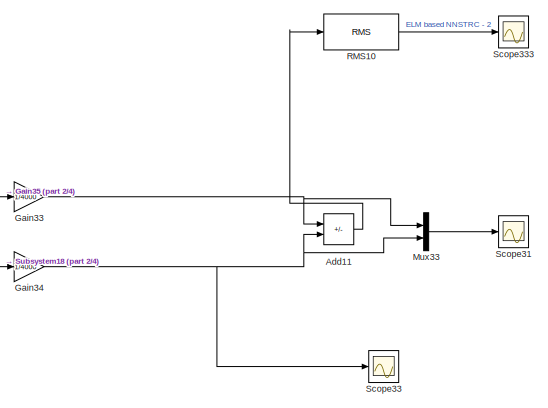
[diagram: root canvas - part 1/4, top right region]
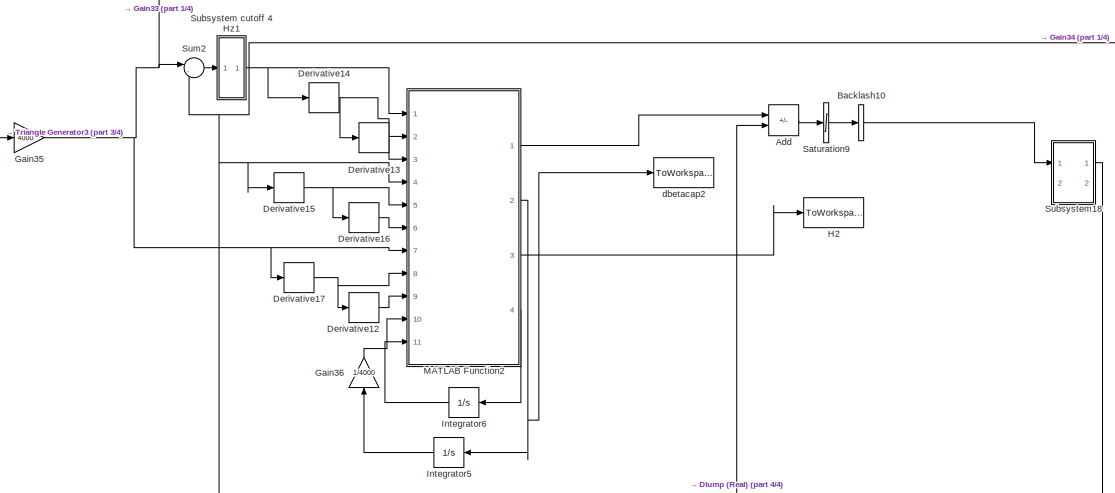
[diagram: root canvas - part 2/4, central region]
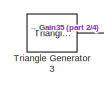
[diagram: root canvas - part 3/4, top left region]
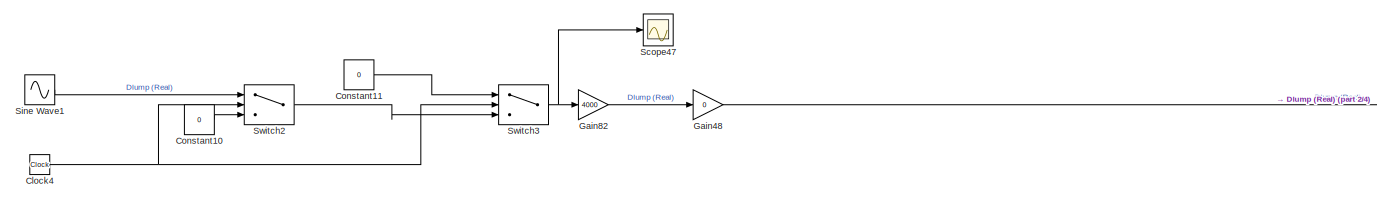
[diagram: root canvas - part 4/4, bottom left region]
MODEL slx_46fefeda6bee
KIND model
CONFIG AbsTol = auto
CONFIG EnableMultiTasking = on
CONFIG FixedStep = 0.001768
CONFIG MaxStep = auto
CONFIG MinStep = auto
CONFIG RelTol = 1e-3
CONFIG SampleTimeConstraint = Unconstrained
CONFIG SolverName = FixedStepAuto
CONFIG StartTime = 0.0
CONFIG StopTime = 40
BLOCK [Sum] Add
  IconShape = rectangular
  Inputs = +-
  Ports = [2, 1]
BLOCK [Sum] Add11
  IconShape = rectangular
  Inputs = +-
  Ports = [2, 1]
BLOCK [Backlash] Backlash10
  BacklashWidth = BACKLASH
BLOCK [Clock] Clock4
BLOCK [Constant] Constant10
  Value = 0
BLOCK [Constant] Constant11
  Value = 0
BLOCK [Derivative] Derivative12
BLOCK [Derivative] Derivative13
BLOCK [Derivative] Derivative14
BLOCK [Derivative] Derivative15
BLOCK [Derivative] Derivative16
BLOCK [Derivative] Derivative17
BLOCK [Gain] Gain33
  Gain = 1/4000
BLOCK [Gain] Gain34
  Gain = 1/4000
BLOCK [Gain] Gain35
  Gain = 4000
BLOCK [Gain] Gain36
  Gain = 1/4000
  NameLocation = right
BLOCK [Gain] Gain48
  Gain = 0
BLOCK [Gain] Gain82
  Gain = 4000
BLOCK [ToWorkspace] H2
  FixptAsFi = on
  MaxDataPoints = inf
  Ports = [1]
  SampleTime = -1
  SaveFormat = Timeseries
  VariableName = simout4
BLOCK [Integrator] Integrator5
  NameLocation = top
  Ports = [1, 1]
BLOCK [Integrator] Integrator6
  NameLocation = top
  Ports = [1, 1]
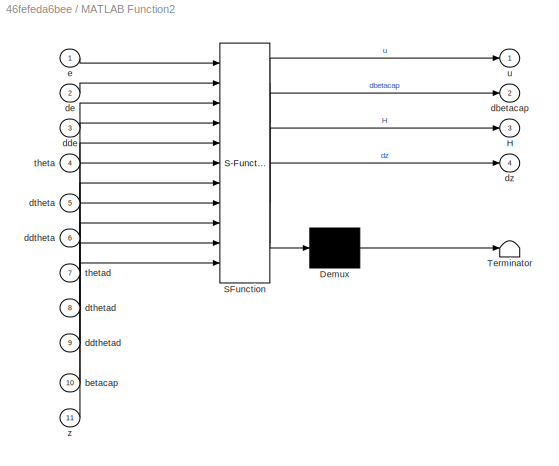
BLOCK [SubSystem] MATLAB Function2
  ErrorFcn = Stateflow.Translate.translate
  PermitHierarchicalResolution = ExplicitOnly
  Ports = [11, 4]
  RequestExecContextInheritance = off
  SFBlockType = MATLAB Function
  TreatAsAtomicUnit = on
BLOCK [Demux] MATLAB Function2/ Demux 
  Outputs = 1
  Ports = [1, 1]
BLOCK [S-Function] MATLAB Function2/ SFunction 
  EnableBusSupport = on
  FunctionName = sf_sfun
  PortCounts = [11 5]
  Ports = [11, 5]
  SFcnIsStateOwnerBlock = off
  SFunctionDeploymentMode = off
  Tag = Stateflow S-Function 19
BLOCK [Terminator] MATLAB Function2/ Terminator 
BLOCK [Outport] MATLAB Function2/H
  Port = 3
  VectorParamsAs1DForOutWhenUnconnected = off
BLOCK [Inport] MATLAB Function2/betacap
  Port = 10
BLOCK [Outport] MATLAB Function2/dbetacap
  Port = 2
  VectorParamsAs1DForOutWhenUnconnected = off
BLOCK [Inport] MATLAB Function2/dde
  Port = 3
BLOCK [Inport] MATLAB Function2/ddtheta
  Port = 6
BLOCK [Inport] MATLAB Function2/ddthetad
  Port = 9
BLOCK [Inport] MATLAB Function2/de
  Port = 2
BLOCK [Inport] MATLAB Function2/dtheta
  Port = 5
BLOCK [Inport] MATLAB Function2/dthetad
  Port = 8
BLOCK [Outport] MATLAB Function2/dz
  Port = 4
  VectorParamsAs1DForOutWhenUnconnected = off
BLOCK [Inport] MATLAB Function2/e
BLOCK [Inport] MATLAB Function2/theta
  Port = 4
BLOCK [Inport] MATLAB Function2/thetad
  Port = 7
BLOCK [Outport] MATLAB Function2/u
  VectorParamsAs1DForOutWhenUnconnected = off
BLOCK [Inport] MATLAB Function2/z
  Port = 11
BLOCK [Mux] Mux33
  DisplayOption = bar
  Inputs = 2
  Ports = [2, 1]
BLOCK [Reference] RMS10  REF=dspstat3/RMS
  Ports = [1, 1]
  SourceBlock = dspstat3/RMS
  SourceProductBaseCode = DS
  SourceType = RMS
  UserDataPersistent = on
BLOCK [Saturate] Saturation9
  LowerLimit = -32000
  UpperLimit = 32000
BLOCK [Scope] Scope31
  Floating = off
  NumInputPorts = 1
  Ports = [1]
  ScopeSpecificationString = Simulink.scopes.TimeScopeBlockCfg('CurrentConfiguration', extmgr.ConfigurationSet(extmgr.Configuration('Core','General UI',true),extmgr.Configuration('Core','Source UI',true),extmgr.Configuration('Sources','WiredSimulink',true,'DataLoggingVariableName','ScopeData1'),extmgr.Configuration('Visuals','Time Domain',true,'SerializedDisplays',{struct('MinYLimReal','-1.3307','MaxYLimReal','1.73355','YLabe...<+1472ch>
BLOCK [Scope] Scope33
  Floating = off
  NumInputPorts = 1
  Ports = [1]
  ScopeSpecificationString = Simulink.scopes.TimeScopeBlockCfg('CurrentConfiguration', extmgr.ConfigurationSet(extmgr.Configuration('Core','General UI',true),extmgr.Configuration('Core','Source UI',true),extmgr.Configuration('Sources','WiredSimulink',true,'DataLoggingVariableName','ScopeData2','DataLogging',true,'DataLoggingSaveFormat','StructureWithTime'),extmgr.Configuration('Visuals','Time Domain',true,'SerializedDisplays'...<+1840ch>
BLOCK [Scope] Scope333
  Floating = off
  NumInputPorts = 1
  Ports = [1]
  ScopeSpecificationString = Simulink.scopes.TimeScopeBlockCfg('CurrentConfiguration', extmgr.ConfigurationSet(extmgr.Configuration('Core','General UI',true),extmgr.Configuration('Core','Source UI',true),extmgr.Configuration('Sources','WiredSimulink',true,'DataLogging',true,'DataLoggingVariableName','ScopeData3','DataLoggingSaveFormat','StructureWithTime','DataLoggingDecimation','1','DataLoggingDecimateData',true),extmgr.Conf...<+1709ch>
BLOCK [Scope] Scope47
  Floating = off
  NumInputPorts = 1
  Ports = [1]
  ScopeSpecificationString = Simulink.scopes.TimeScopeBlockCfg('CurrentConfiguration', extmgr.ConfigurationSet(extmgr.Configuration('Core','General UI',true),extmgr.Configuration('Core','Source UI',true),extmgr.Configuration('Sources','WiredSimulink',true,'DataLoggingVariableName','ScopeData4'),extmgr.Configuration('Visuals','Time Domain',true,'SerializedDisplays',{struct('MinYLimReal','-1.25','MaxYLimReal','1.25','YLabelReal...<+1373ch>
BLOCK [Sin] Sine Wave1
  Frequency = 2*pi*0.2762
  Ports = [0, 1]
  SampleTime = 0.001768
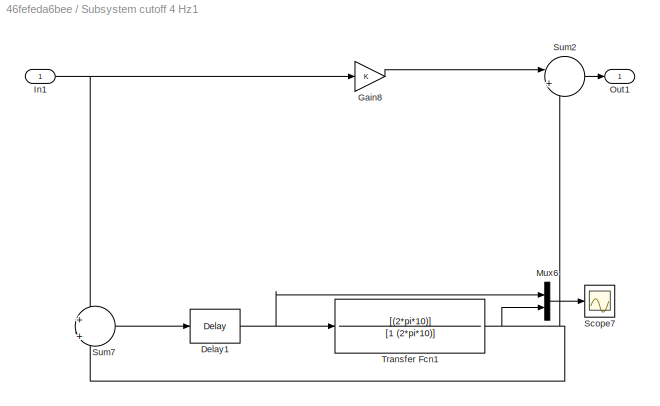
BLOCK [SubSystem] Subsystem cutoff 4 Hz1
  Ports = [1, 1]
  RequestExecContextInheritance = off
BLOCK [Delay] Subsystem cutoff 4 Hz1/Delay1
  DelayLength = 2048
  InputPortMap = u0
  Ports = [1, 1]
  SampleTime = 0.001768
BLOCK [Gain] Subsystem cutoff 4 Hz1/Gain8
BLOCK [Inport] Subsystem cutoff 4 Hz1/In1
BLOCK [Mux] Subsystem cutoff 4 Hz1/Mux6
  DisplayOption = bar
  Inputs = 2
  Ports = [2, 1]
BLOCK [Outport] Subsystem cutoff 4 Hz1/Out1
  VectorParamsAs1DForOutWhenUnconnected = off
BLOCK [Scope] Subsystem cutoff 4 Hz1/Scope7
  Floating = off
  NumInputPorts = 1
  Ports = [1]
  ScopeSpecificationString = Simulink.scopes.TimeScopeBlockCfg('CurrentConfiguration', extmgr.ConfigurationSet(extmgr.Configuration('Core','General UI',true),extmgr.Configuration('Core','Source UI',true),extmgr.Configuration('Sources','WiredSimulink',true,'DataLoggingVariableName','ScopeData10','DataLoggingSaveFormat','Array','DataLoggingDecimation','1','DataLoggingDecimateData',true),extmgr.Configuration('Visuals','Time Doma...<+1631ch>
BLOCK [Sum] Subsystem cutoff 4 Hz1/Sum2
  InputSameDT = on
  Inputs = |++
  OutDataTypeStr = Inherit: Same as first input
  Ports = [2, 1]
  SaturateOnIntegerOverflow = on
BLOCK [Sum] Subsystem cutoff 4 Hz1/Sum7
  InputSameDT = on
  Inputs = +|+
  OutDataTypeStr = Inherit: Same as first input
  Ports = [2, 1]
  SaturateOnIntegerOverflow = on
BLOCK [TransferFcn] Subsystem cutoff 4 Hz1/Transfer Fcn1
  Denominator = [1 (2*pi*10)]
  Numerator = [(2*pi*10)]
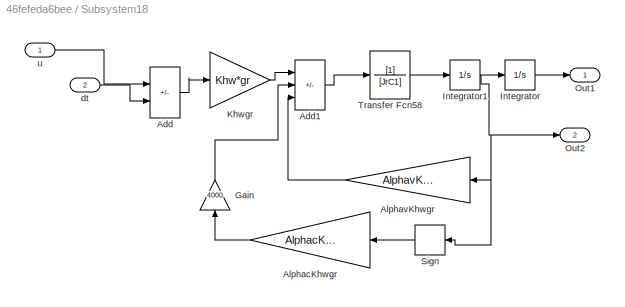
BLOCK [SubSystem] Subsystem18
  Ports = [2, 2]
  RequestExecContextInheritance = off
BLOCK [Sum] Subsystem18/Add
  IconShape = rectangular
  Inputs = +-
  Ports = [2, 1]
BLOCK [Sum] Subsystem18/Add1
  IconShape = rectangular
  Inputs = +--
  Ports = [3, 1]
BLOCK [Gain] Subsystem18/AlphacKhwgr
  Gain = AlphacKhwgr
  NameLocation = top
BLOCK [Gain] Subsystem18/AlphavKhwgr
  Gain = AlphavKhwgr
  NameLocation = top
BLOCK [Gain] Subsystem18/Gain
  Gain = 4000
  NameLocation = right
BLOCK [Integrator] Subsystem18/Integrator
  Ports = [1, 1]
BLOCK [Integrator] Subsystem18/Integrator1
  Ports = [1, 1]
BLOCK [Gain] Subsystem18/Khwgr
  Gain = Khw*gr
BLOCK [Outport] Subsystem18/Out1
  VectorParamsAs1DForOutWhenUnconnected = off
BLOCK [Outport] Subsystem18/Out2
  Port = 2
  VectorParamsAs1DForOutWhenUnconnected = off
BLOCK [Signum] Subsystem18/Sign
  NameLocation = top
BLOCK [TransferFcn] Subsystem18/Transfer Fcn58
  Denominator = [JrC1]
BLOCK [Inport] Subsystem18/dt
  Port = 2
BLOCK [Inport] Subsystem18/u
BLOCK [Sum] Sum2
  Inputs = |-+
  Ports = [2, 1]
BLOCK [Switch] Switch2
  InputSameDT = off
  SaturateOnIntegerOverflow = off
  Threshold = 20
BLOCK [Switch] Switch3
  InputSameDT = off
  SaturateOnIntegerOverflow = off
  Threshold = 30
BLOCK [Reference] Triangle Generator3  REF=spsTriangleGeneratorLib/Triangle
Generator
  Ports = [0, 1]
  SourceBlock = spsTriangleGeneratorLib/Triangle\nGenerator
  SourceProductBaseCode = PS
  SourceType = Triangle Generator
BLOCK [ToWorkspace] dbetacap2
  FixptAsFi = on
  MaxDataPoints = inf
  Ports = [1]
  SampleTime = -1
  SaveFormat = Timeseries
  VariableName = simout5
LINE Add11:1 -> RMS10:1
LINE Add:1 -> Saturation9:1
LINE Backlash10:1 -> Subsystem18:1
NET Clock4:1 -> Switch2:2, Switch3:2
LINE Constant10:1 -> Switch2:3
LINE Constant11:1 -> Switch3:1
LINE Derivative12:1 -> MATLAB Function2:9
LINE Derivative13:1 -> MATLAB Function2:3
NET Derivative14:1 -> Derivative13:1, MATLAB Function2:2
NET Derivative15:1 -> Derivative16:1, MATLAB Function2:5
LINE Derivative16:1 -> MATLAB Function2:6
NET Derivative17:1 -> Derivative12:1, MATLAB Function2:8
NET Gain33:1 -> Add11:1, Mux33:1
NET Gain34:1 -> Add11:2, Mux33:2, Scope33:1
NET Gain35:1 -> Derivative17:1, Gain33:1, MATLAB Function2:7, Sum2:1
LINE Gain36:1 -> MATLAB Function2:10
LINE Gain48:1 -> Add:2
LINE Gain82:1 -> Gain48:1
LINE Integrator5:1 -> Gain36:1
LINE Integrator6:1 -> MATLAB Function2:11
LINE MATLAB Function2:1 -> Add:1
NET MATLAB Function2:2 -> Integrator5:1, dbetacap2:1
LINE MATLAB Function2:3 -> H2:1
LINE MATLAB Function2:4 -> Integrator6:1
LINE Mux33:1 -> Scope31:1
LINE RMS10:1 -> Scope333:1
LINE Saturation9:1 -> Backlash10:1
LINE Sine Wave1:1 -> Switch2:1
NET Subsystem cutoff 4 Hz1/Delay1:1 -> Subsystem cutoff 4 Hz1/Mux6:1, Subsystem cutoff 4 Hz1/Transfer Fcn1:1
LINE Subsystem cutoff 4 Hz1/Gain8:1 -> Subsystem cutoff 4 Hz1/Sum2:1
NET Subsystem cutoff 4 Hz1/In1:1 -> Subsystem cutoff 4 Hz1/Gain8:1, Subsystem cutoff 4 Hz1/Sum7:1
LINE Subsystem cutoff 4 Hz1/Mux6:1 -> Subsystem cutoff 4 Hz1/Scope7:1
LINE Subsystem cutoff 4 Hz1/Sum2:1 -> Subsystem cutoff 4 Hz1/Out1:1
LINE Subsystem cutoff 4 Hz1/Sum7:1 -> Subsystem cutoff 4 Hz1/Delay1:1
NET Subsystem cutoff 4 Hz1/Transfer Fcn1:1 -> Subsystem cutoff 4 Hz1/Mux6:2, Subsystem cutoff 4 Hz1/Sum2:2, Subsystem cutoff 4 Hz1/Sum7:2
NET Subsystem cutoff 4 Hz1:1 -> Derivative14:1, MATLAB Function2:1
LINE Subsystem18/Add1:1 -> Subsystem18/Transfer Fcn58:1
LINE Subsystem18/Add:1 -> Subsystem18/Khwgr:1
LINE Subsystem18/AlphacKhwgr:1 -> Subsystem18/Gain:1
LINE Subsystem18/AlphavKhwgr:1 -> Subsystem18/Add1:3
LINE Subsystem18/Gain:1 -> Subsystem18/Add1:2
NET Subsystem18/Integrator1:1 -> Subsystem18/AlphavKhwgr:1, Subsystem18/Integrator:1, Subsystem18/Out2:1, Subsystem18/Sign:1
LINE Subsystem18/Integrator:1 -> Subsystem18/Out1:1
LINE Subsystem18/Khwgr:1 -> Subsystem18/Add1:1
LINE Subsystem18/Sign:1 -> Subsystem18/AlphacKhwgr:1
LINE Subsystem18/Transfer Fcn58:1 -> Subsystem18/Integrator1:1
LINE Subsystem18/dt:1 -> Subsystem18/Add:2
LINE Subsystem18/u:1 -> Subsystem18/Add:1
NET Subsystem18:1 -> Derivative15:1, Gain34:1, MATLAB Function2:4, Sum2:2
LINE Sum2:1 -> Subsystem cutoff 4 Hz1:1
LINE Switch2:1 -> Switch3:3
NET Switch3:1 -> Gain82:1, Scope47:1
LINE Triangle Generator3:1 -> Gain35:1
note: NET lines group one-source signal fan-out (src -> all destinations, sorted); 1:1 wires keep LINE
CHART MATLAB Function2 states=1 transitions=1
  STATE_LABEL 'eML_blk_kernel()'
  STATE_LABEL 'SCRIPT:\nfunction [u,dbetacap,H,dz]   = fcn(e,de,dde,theta,dtheta,ddtheta,thetad,dthetad,ddthetad,betacap,z)\n\nJrC1=0.0675;\nKhw=5.81;\ngr=4;\nAlphavKhwgr=0.914;\nAlphacKhwgr=0;\n\nb0=Khw*gr;\nBeq0=AlphavKhwgr;\nJeq0=JrC1;\nFs0=AlphacKhwgr;\nTLH0=0.3193;\nksp0=0.0914;\ntheta0=12/180*pi;\n\nk1=0.1;\nk2=0.5;\nk3=0.1;\nkp=-5;\nki=-20;\nkd=-0.5;\n%miu1=0.002;\nmiu1=200/10;\n%miu2=200;\nmiu2=200/10;\n\ngeta1=9/7;\ngeta2=17/9;\nget...<+1550ch>'
CHART  states=0 transitions=0
